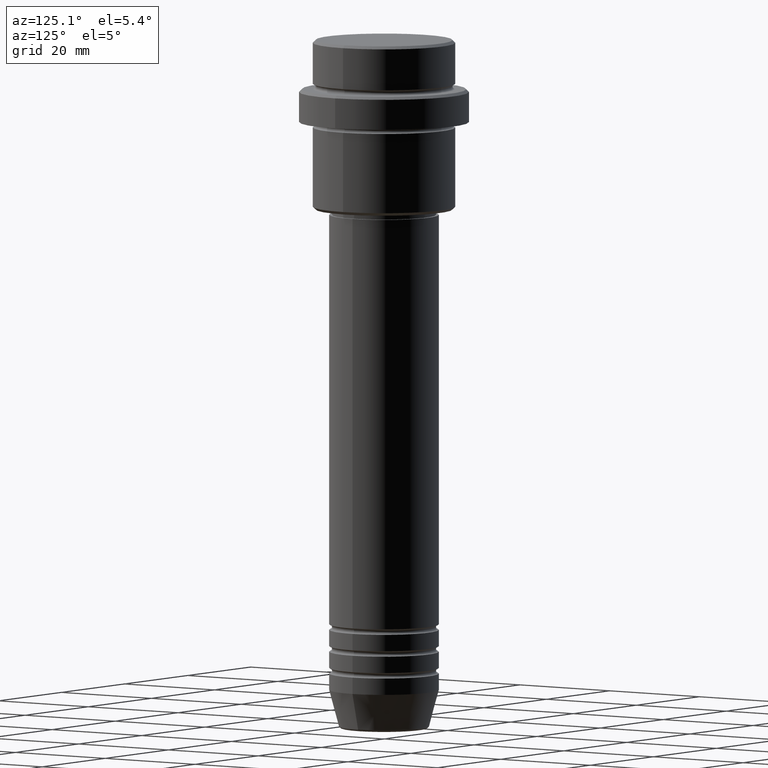
[diagram: clean part render]
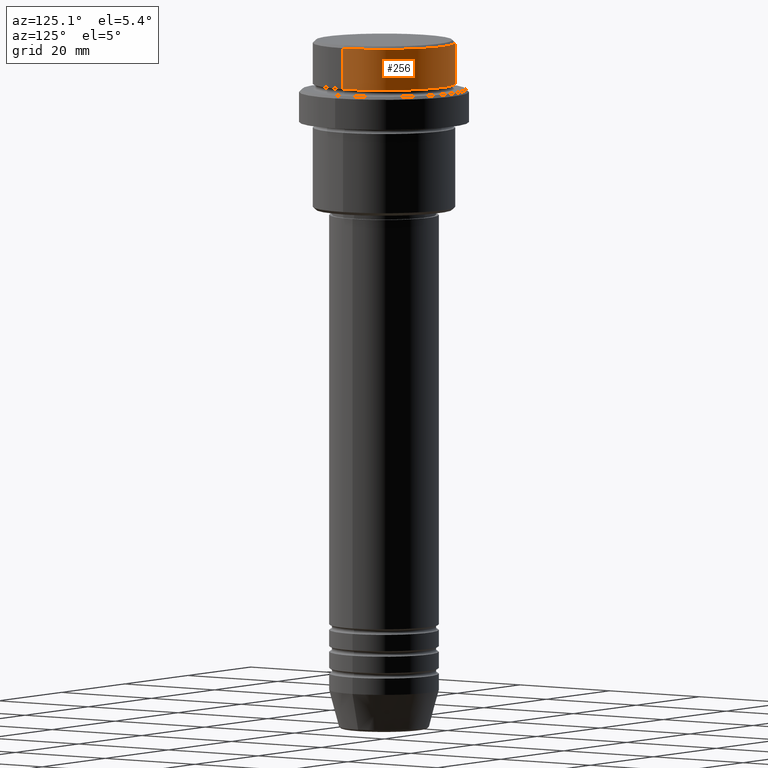
[diagram: same view with one face highlighted and labeled with its STEP entity id]
A machine part, auxiliary view. The second image highlights one B-rep face of the part: STEP entity #256.
In plain terms, the highlighted cylindrical surface (partial cylindrical patch) has radius 13 mm, axis along (-0, -0, 1).
Its self-contained STEP definition (entity closure, byte-faithful):
#12 = DIRECTION ( 'NONE',  ( 1.000000000000000000, 0.000000000000000000, 0.000000000000000000 ) ) ;
#13 = DIRECTION ( 'NONE',  ( -0.000000000000000000, -0.000000000000000000, 1.000000000000000000 ) ) ;
#40 = AXIS2_PLACEMENT_3D ( 'NONE', #954, #1046, #513 ) ;
#71 = CARTESIAN_POINT ( 'NONE',  ( 0.000000000000000000, 0.000000000000000000, -0.4999999999999900080 ) ) ;
#77 = VECTOR ( 'NONE', #13, 1000.000000000000000 ) ;
#122 = CIRCLE ( 'NONE', #630, 12.99999999999999822 ) ;
#237 = CARTESIAN_POINT ( 'NONE',  ( 0.000000000000000000, 0.000000000000000000, -7.999999999999998224 ) ) ;
#256 = ADVANCED_FACE ( 'NONE', ( #786 ), #1222, .T. ) ;
#277 = DIRECTION ( 'NONE',  ( -0.000000000000000000, -0.000000000000000000, 1.000000000000000000 ) ) ;
#348 = VECTOR ( 'NONE', #277, 1000.000000000000000 ) ;
#369 = AXIS2_PLACEMENT_3D ( 'NONE', #71, #505, #940 ) ;
#409 = CARTESIAN_POINT ( 'NONE',  ( -12.99999999999999822, 1.592040838891558898E-15, -7.999999999999998224 ) ) ;
#471 = CARTESIAN_POINT ( 'NONE',  ( 12.99999999999999822, 0.000000000000000000, -7.999999999999998224 ) ) ;
#505 = DIRECTION ( 'NONE',  ( 0.000000000000000000, 0.000000000000000000, -1.000000000000000000 ) ) ;
#513 = DIRECTION ( 'NONE',  ( 1.000000000000000000, 0.000000000000000000, 0.000000000000000000 ) ) ;
#612 = VERTEX_POINT ( 'NONE', #471 ) ;
#630 = AXIS2_PLACEMENT_3D ( 'NONE', #237, #1228, #12 ) ;
#633 = EDGE_CURVE ( 'NONE', #612, #1359, #1364, .T. ) ;
#734 = CARTESIAN_POINT ( 'NONE',  ( 12.99999999999999822, 0.000000000000000000, 0.000000000000000000 ) ) ;
#751 = VERTEX_POINT ( 'NONE', #409 ) ;
#784 = LINE ( 'NONE', #999, #77 ) ;
#786 = FACE_OUTER_BOUND ( 'NONE', #1014, .T. ) ;
#797 = ORIENTED_EDGE ( 'NONE', *, *, #1012, .T. ) ;
#817 = VERTEX_POINT ( 'NONE', #1005 ) ;
#854 = ORIENTED_EDGE ( 'NONE', *, *, #633, .F. ) ;
#940 = DIRECTION ( 'NONE',  ( 1.000000000000000000, 0.000000000000000000, 0.000000000000000000 ) ) ;
#954 = CARTESIAN_POINT ( 'NONE',  ( 0.000000000000000000, 0.000000000000000000, 0.000000000000000000 ) ) ;
#999 = CARTESIAN_POINT ( 'NONE',  ( -12.99999999999999822, 1.592040838891558898E-15, 0.000000000000000000 ) ) ;
#1005 = CARTESIAN_POINT ( 'NONE',  ( -12.99999999999999822, 1.592040838891558898E-15, -0.4999999999999900080 ) ) ;
#1012 = EDGE_CURVE ( 'NONE', #751, #817, #784, .T. ) ;
#1014 = EDGE_LOOP ( 'NONE', ( #1393, #797, #1054, #854 ) ) ;
#1046 = DIRECTION ( 'NONE',  ( -0.000000000000000000, -0.000000000000000000, 1.000000000000000000 ) ) ;
#1054 = ORIENTED_EDGE ( 'NONE', *, *, #1072, .T. ) ;
#1072 = EDGE_CURVE ( 'NONE', #817, #1359, #1076, .T. ) ;
#1076 = CIRCLE ( 'NONE', #369, 12.99999999999999822 ) ;
#1212 = CARTESIAN_POINT ( 'NONE',  ( 12.99999999999999822, 0.000000000000000000, -0.4999999999999900080 ) ) ;
#1222 = CYLINDRICAL_SURFACE ( 'NONE', #40, 12.99999999999999822 ) ;
#1228 = DIRECTION ( 'NONE',  ( -0.000000000000000000, -0.000000000000000000, 1.000000000000000000 ) ) ;
#1359 = VERTEX_POINT ( 'NONE', #1212 ) ;
#1364 = LINE ( 'NONE', #734, #348 ) ;
#1384 = EDGE_CURVE ( 'NONE', #612, #751, #122, .T. ) ;
#1393 = ORIENTED_EDGE ( 'NONE', *, *, #1384, .T. ) ;